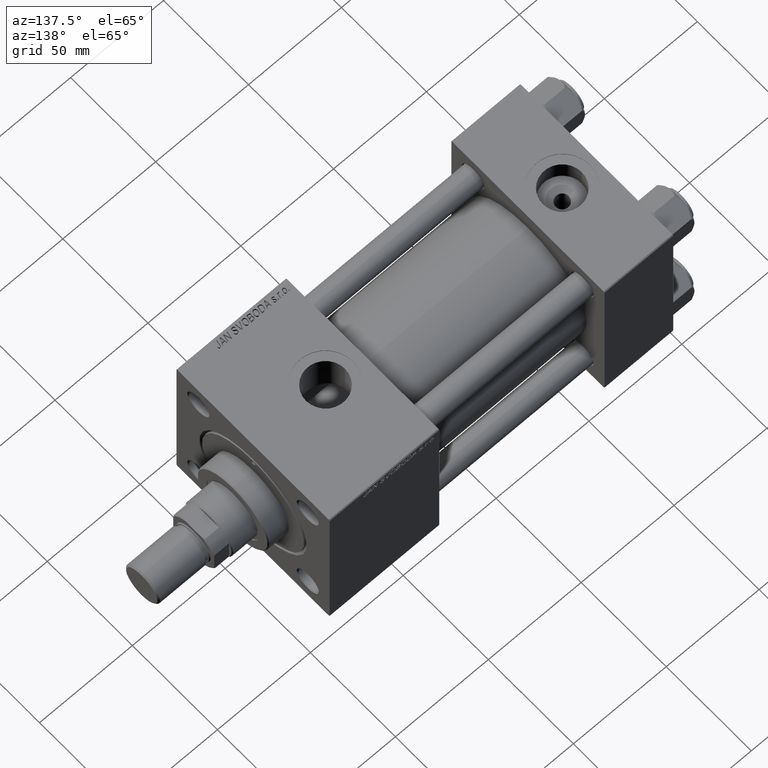
[diagram: clean part render]
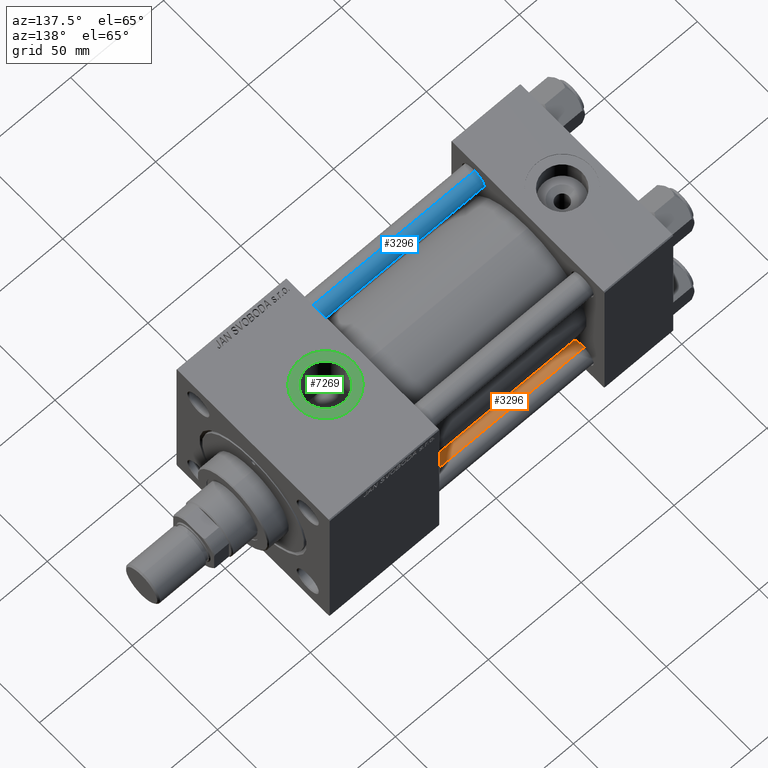
[diagram: same view with three faces highlighted in distinct colors, each labeled with its STEP entity id]
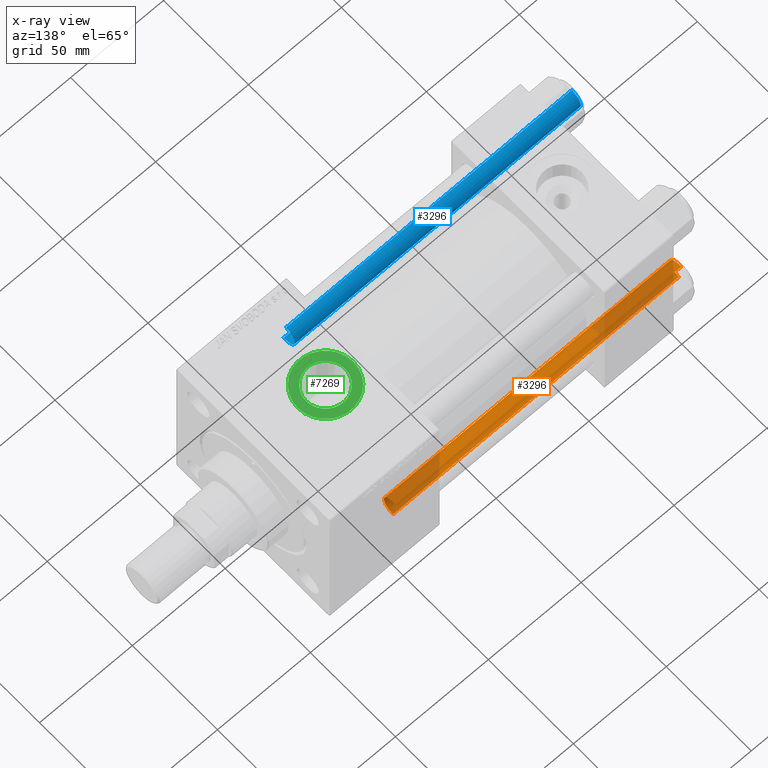
[diagram: x-ray of the same camera — body ghosted, the three highlighted faces saturated]
A machine part, auxiliary view with three faces highlighted in distinct colors.
The next image is the same camera in x-ray (body ghosted, the three faces saturated) — at least one of them is partly hidden behind the body in this view.
Their STEP definitions:

[orange] entity #3296 — the highlighted cylindrical surface (edge-blend (fillet) strip) has radius 6 mm, axis along (1, -0, 0).
#365 = DIRECTION ( 'NONE',  ( -0.000000000000000000, -0.000000000000000000, -1.000000000000000000 ) ) ;
#899 = DIRECTION ( 'NONE',  ( -0.000000000000000000, -0.000000000000000000, -1.000000000000000000 ) ) ;
#1455 = EDGE_CURVE ( 'NONE', #50665, #29402, #16563, .T. ) ;
#3221 = DIRECTION ( 'NONE',  ( 0.000000000000000000, 0.000000000000000000, -1.000000000000000000 ) ) ;
#3296 = ADVANCED_FACE ( 'NONE', ( #42303 ), #50260, .T. ) ;
#5072 = DIRECTION ( 'NONE',  ( -0.000000000000000000, -0.000000000000000000, -1.000000000000000000 ) ) ;
#7425 = VECTOR ( 'NONE', #5072, 1000.000000000000000 ) ;
#7968 = ORIENTED_EDGE ( 'NONE', *, *, #31673, .T. ) ;
#10204 = EDGE_LOOP ( 'NONE', ( #20978, #37414, #43848, #7968 ) ) ;
#10908 = DIRECTION ( 'NONE',  ( -1.000000000000000000, 0.000000000000000000, 0.000000000000000000 ) ) ;
#14173 = DIRECTION ( 'NONE',  ( -0.000000000000000000, -0.000000000000000000, 1.000000000000000000 ) ) ;
#15040 = CIRCLE ( 'NONE', #29846, 6.000000000000000888 ) ;
#16563 = LINE ( 'NONE', #36111, #28763 ) ;
#17525 = CARTESIAN_POINT ( 'NONE',  ( 0.000000000000000000, 0.000000000000000000, 0.4999999999999726885 ) ) ;
#17965 = CIRCLE ( 'NONE', #41015, 6.000000000000000888 ) ;
#20978 = ORIENTED_EDGE ( 'NONE', *, *, #34101, .F. ) ;
#22007 = VERTEX_POINT ( 'NONE', #37680 ) ;
#26611 = CARTESIAN_POINT ( 'NONE',  ( 0.000000000000000000, 0.000000000000000000, 155.0000000000000000 ) ) ;
#28763 = VECTOR ( 'NONE', #899, 1000.000000000000000 ) ;
#29402 = VERTEX_POINT ( 'NONE', #38475 ) ;
#29846 = AXIS2_PLACEMENT_3D ( 'NONE', #39456, #3221, #50777 ) ;
#31673 = EDGE_CURVE ( 'NONE', #29402, #22007, #17965, .T. ) ;
#34101 = EDGE_CURVE ( 'NONE', #44923, #22007, #35426, .T. ) ;
#35426 = LINE ( 'NONE', #39540, #7425 ) ;
#36111 = CARTESIAN_POINT ( 'NONE',  ( -6.000000000000000888, 0.000000000000000000, 155.0000000000000000 ) ) ;
#37414 = ORIENTED_EDGE ( 'NONE', *, *, #41596, .T. ) ;
#37657 = CARTESIAN_POINT ( 'NONE',  ( -6.000000000000000888, 0.000000000000000000, 154.5000000000000000 ) ) ;
#37680 = CARTESIAN_POINT ( 'NONE',  ( 6.000000000000000888, 7.347880794884120722E-16, 0.4999999999999726885 ) ) ;
#38475 = CARTESIAN_POINT ( 'NONE',  ( -6.000000000000000888, 0.000000000000000000, 0.4999999999999726885 ) ) ;
#39456 = CARTESIAN_POINT ( 'NONE',  ( 0.000000000000000000, 0.000000000000000000, 154.5000000000000000 ) ) ;
#39540 = CARTESIAN_POINT ( 'NONE',  ( 6.000000000000000888, 7.347880794884120722E-16, 155.0000000000000000 ) ) ;
#40283 = AXIS2_PLACEMENT_3D ( 'NONE', #26611, #365, #10908 ) ;
#41015 = AXIS2_PLACEMENT_3D ( 'NONE', #17525, #14173, #41451 ) ;
#41451 = DIRECTION ( 'NONE',  ( 1.000000000000000000, 0.000000000000000000, 0.000000000000000000 ) ) ;
#41596 = EDGE_CURVE ( 'NONE', #44923, #50665, #15040, .T. ) ;
#42303 = FACE_OUTER_BOUND ( 'NONE', #10204, .T. ) ;
#43848 = ORIENTED_EDGE ( 'NONE', *, *, #1455, .T. ) ;
#44923 = VERTEX_POINT ( 'NONE', #48632 ) ;
#48632 = CARTESIAN_POINT ( 'NONE',  ( 6.000000000000000888, 7.347880794884120722E-16, 154.5000000000000000 ) ) ;
#50260 = CYLINDRICAL_SURFACE ( 'NONE', #40283, 6.000000000000000888 ) ;
#50665 = VERTEX_POINT ( 'NONE', #37657 ) ;
#50777 = DIRECTION ( 'NONE',  ( 1.000000000000000000, 0.000000000000000000, 0.000000000000000000 ) ) ;

[blue] entity #3296 — the highlighted cylindrical surface (edge-blend (fillet) strip) has radius 6 mm, axis along (1, 0, -0).
#365 = DIRECTION ( 'NONE',  ( -0.000000000000000000, -0.000000000000000000, -1.000000000000000000 ) ) ;
#899 = DIRECTION ( 'NONE',  ( -0.000000000000000000, -0.000000000000000000, -1.000000000000000000 ) ) ;
#1455 = EDGE_CURVE ( 'NONE', #50665, #29402, #16563, .T. ) ;
#3221 = DIRECTION ( 'NONE',  ( 0.000000000000000000, 0.000000000000000000, -1.000000000000000000 ) ) ;
#3296 = ADVANCED_FACE ( 'NONE', ( #42303 ), #50260, .T. ) ;
#5072 = DIRECTION ( 'NONE',  ( -0.000000000000000000, -0.000000000000000000, -1.000000000000000000 ) ) ;
#7425 = VECTOR ( 'NONE', #5072, 1000.000000000000000 ) ;
#7968 = ORIENTED_EDGE ( 'NONE', *, *, #31673, .T. ) ;
#10204 = EDGE_LOOP ( 'NONE', ( #20978, #37414, #43848, #7968 ) ) ;
#10908 = DIRECTION ( 'NONE',  ( -1.000000000000000000, 0.000000000000000000, 0.000000000000000000 ) ) ;
#14173 = DIRECTION ( 'NONE',  ( -0.000000000000000000, -0.000000000000000000, 1.000000000000000000 ) ) ;
#15040 = CIRCLE ( 'NONE', #29846, 6.000000000000000888 ) ;
#16563 = LINE ( 'NONE', #36111, #28763 ) ;
#17525 = CARTESIAN_POINT ( 'NONE',  ( 0.000000000000000000, 0.000000000000000000, 0.4999999999999726885 ) ) ;
#17965 = CIRCLE ( 'NONE', #41015, 6.000000000000000888 ) ;
#20978 = ORIENTED_EDGE ( 'NONE', *, *, #34101, .F. ) ;
#22007 = VERTEX_POINT ( 'NONE', #37680 ) ;
#26611 = CARTESIAN_POINT ( 'NONE',  ( 0.000000000000000000, 0.000000000000000000, 155.0000000000000000 ) ) ;
#28763 = VECTOR ( 'NONE', #899, 1000.000000000000000 ) ;
#29402 = VERTEX_POINT ( 'NONE', #38475 ) ;
#29846 = AXIS2_PLACEMENT_3D ( 'NONE', #39456, #3221, #50777 ) ;
#31673 = EDGE_CURVE ( 'NONE', #29402, #22007, #17965, .T. ) ;
#34101 = EDGE_CURVE ( 'NONE', #44923, #22007, #35426, .T. ) ;
#35426 = LINE ( 'NONE', #39540, #7425 ) ;
#36111 = CARTESIAN_POINT ( 'NONE',  ( -6.000000000000000888, 0.000000000000000000, 155.0000000000000000 ) ) ;
#37414 = ORIENTED_EDGE ( 'NONE', *, *, #41596, .T. ) ;
#37657 = CARTESIAN_POINT ( 'NONE',  ( -6.000000000000000888, 0.000000000000000000, 154.5000000000000000 ) ) ;
#37680 = CARTESIAN_POINT ( 'NONE',  ( 6.000000000000000888, 7.347880794884120722E-16, 0.4999999999999726885 ) ) ;
#38475 = CARTESIAN_POINT ( 'NONE',  ( -6.000000000000000888, 0.000000000000000000, 0.4999999999999726885 ) ) ;
#39456 = CARTESIAN_POINT ( 'NONE',  ( 0.000000000000000000, 0.000000000000000000, 154.5000000000000000 ) ) ;
#39540 = CARTESIAN_POINT ( 'NONE',  ( 6.000000000000000888, 7.347880794884120722E-16, 155.0000000000000000 ) ) ;
#40283 = AXIS2_PLACEMENT_3D ( 'NONE', #26611, #365, #10908 ) ;
#41015 = AXIS2_PLACEMENT_3D ( 'NONE', #17525, #14173, #41451 ) ;
#41451 = DIRECTION ( 'NONE',  ( 1.000000000000000000, 0.000000000000000000, 0.000000000000000000 ) ) ;
#41596 = EDGE_CURVE ( 'NONE', #44923, #50665, #15040, .T. ) ;
#42303 = FACE_OUTER_BOUND ( 'NONE', #10204, .T. ) ;
#43848 = ORIENTED_EDGE ( 'NONE', *, *, #1455, .T. ) ;
#44923 = VERTEX_POINT ( 'NONE', #48632 ) ;
#48632 = CARTESIAN_POINT ( 'NONE',  ( 6.000000000000000888, 7.347880794884120722E-16, 154.5000000000000000 ) ) ;
#50260 = CYLINDRICAL_SURFACE ( 'NONE', #40283, 6.000000000000000888 ) ;
#50665 = VERTEX_POINT ( 'NONE', #37657 ) ;
#50777 = DIRECTION ( 'NONE',  ( 1.000000000000000000, 0.000000000000000000, 0.000000000000000000 ) ) ;

[green] entity #7269 — the highlighted planar face has unit normal (0, 0, 1).
#429 = AXIS2_PLACEMENT_3D ( 'NONE', #10781, #21887, #38304 ) ;
#448 = CARTESIAN_POINT ( 'NONE',  ( 145.9999999999999716, -6.938893903907227589E-15, 44.79999999999999005 ) ) ;
#1813 = EDGE_LOOP ( 'NONE', ( #4467, #39100 ) ) ;
#3158 = CARTESIAN_POINT ( 'NONE',  ( 156.4799999999999613, -5.655464058400803678E-15, 44.79999999999999005 ) ) ;
#3566 = CIRCLE ( 'NONE', #34768, 15.00000000000001421 ) ;
#4467 = ORIENTED_EDGE ( 'NONE', *, *, #43231, .T. ) ;
#5974 = CARTESIAN_POINT ( 'NONE',  ( 145.9999999999999716, -6.938893903907227589E-15, 44.79999999999999005 ) ) ;
#7269 = ADVANCED_FACE ( 'NONE', ( #30442, #15266 ), #15507, .T. ) ;
#10781 = CARTESIAN_POINT ( 'NONE',  ( 145.9999999999999716, -6.938893903907227589E-15, 44.79999999999999005 ) ) ;
#10893 = DIRECTION ( 'NONE',  ( 1.000000000000000000, 0.000000000000000000, -0.000000000000000000 ) ) ;
#15266 = FACE_OUTER_BOUND ( 'NONE', #1813, .T. ) ;
#15407 = CARTESIAN_POINT ( 'NONE',  ( 160.9999999999999716, -6.938893903907227589E-15, 44.79999999999999005 ) ) ;
#15507 = PLANE ( 'NONE',  #39622 ) ;
#16027 = AXIS2_PLACEMENT_3D ( 'NONE', #5974, #22163, #37832 ) ;
#16107 = DIRECTION ( 'NONE',  ( 1.000000000000000000, 0.000000000000000000, 0.000000000000000000 ) ) ;
#16323 = CARTESIAN_POINT ( 'NONE',  ( 135.5199999999999818, -6.938893903907227589E-15, 44.79999999999999005 ) ) ;
#17091 = EDGE_CURVE ( 'NONE', #43561, #22299, #24199, .T. ) ;
#19113 = DIRECTION ( 'NONE',  ( 0.000000000000000000, 0.000000000000000000, 1.000000000000000000 ) ) ;
#19602 = CARTESIAN_POINT ( 'NONE',  ( 145.9999999999999716, -6.938893903907227589E-15, 44.79999999999999005 ) ) ;
#20146 = CIRCLE ( 'NONE', #16027, 15.00000000000001421 ) ;
#21298 = AXIS2_PLACEMENT_3D ( 'NONE', #46811, #31887, #23413 ) ;
#21887 = DIRECTION ( 'NONE',  ( -0.000000000000000000, -0.000000000000000000, -1.000000000000000000 ) ) ;
#22163 = DIRECTION ( 'NONE',  ( 0.000000000000000000, 0.000000000000000000, 1.000000000000000000 ) ) ;
#22299 = VERTEX_POINT ( 'NONE', #3158 ) ;
#23413 = DIRECTION ( 'NONE',  ( 1.000000000000000000, 0.000000000000000000, 0.000000000000000000 ) ) ;
#24199 = CIRCLE ( 'NONE', #429, 10.47999999999998977 ) ;
#27050 = CIRCLE ( 'NONE', #21298, 10.47999999999998977 ) ;
#27801 = EDGE_CURVE ( 'NONE', #22299, #43561, #27050, .T. ) ;
#30442 = FACE_BOUND ( 'NONE', #46270, .T. ) ;
#31887 = DIRECTION ( 'NONE',  ( -0.000000000000000000, -0.000000000000000000, -1.000000000000000000 ) ) ;
#31965 = ORIENTED_EDGE ( 'NONE', *, *, #17091, .T. ) ;
#34768 = AXIS2_PLACEMENT_3D ( 'NONE', #448, #43371, #16107 ) ;
#37832 = DIRECTION ( 'NONE',  ( 1.000000000000000000, 0.000000000000000000, 0.000000000000000000 ) ) ;
#38156 = VERTEX_POINT ( 'NONE', #43186 ) ;
#38227 = VERTEX_POINT ( 'NONE', #15407 ) ;
#38304 = DIRECTION ( 'NONE',  ( 1.000000000000000000, 0.000000000000000000, 0.000000000000000000 ) ) ;
#39100 = ORIENTED_EDGE ( 'NONE', *, *, #41223, .T. ) ;
#39622 = AXIS2_PLACEMENT_3D ( 'NONE', #19602, #19113, #10893 ) ;
#41223 = EDGE_CURVE ( 'NONE', #38156, #38227, #3566, .T. ) ;
#41330 = ORIENTED_EDGE ( 'NONE', *, *, #27801, .T. ) ;
#43186 = CARTESIAN_POINT ( 'NONE',  ( 130.9999999999999432, -5.101923705186193267E-15, 44.79999999999999005 ) ) ;
#43231 = EDGE_CURVE ( 'NONE', #38227, #38156, #20146, .T. ) ;
#43371 = DIRECTION ( 'NONE',  ( 0.000000000000000000, 0.000000000000000000, 1.000000000000000000 ) ) ;
#43561 = VERTEX_POINT ( 'NONE', #16323 ) ;
#46270 = EDGE_LOOP ( 'NONE', ( #31965, #41330 ) ) ;
#46811 = CARTESIAN_POINT ( 'NONE',  ( 145.9999999999999716, -6.938893903907227589E-15, 44.79999999999999005 ) ) ;